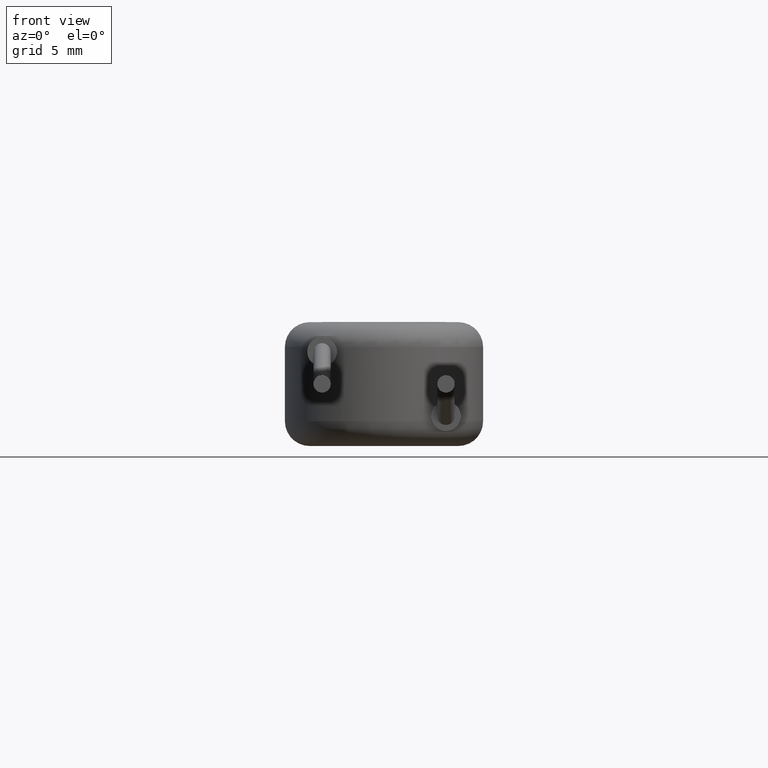
[diagram: clean part render]
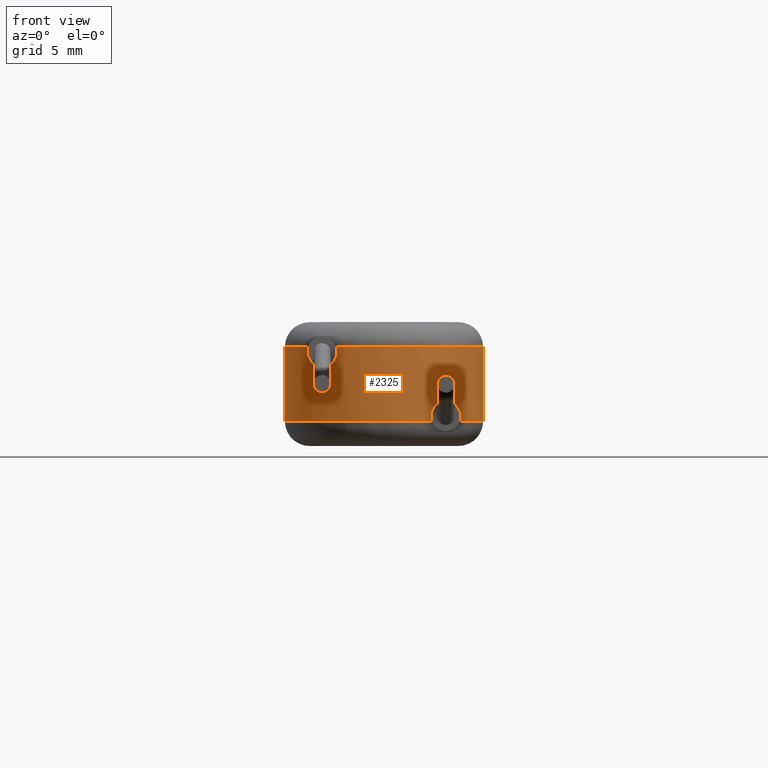
[diagram: same view with one face highlighted and labeled with its STEP entity id]
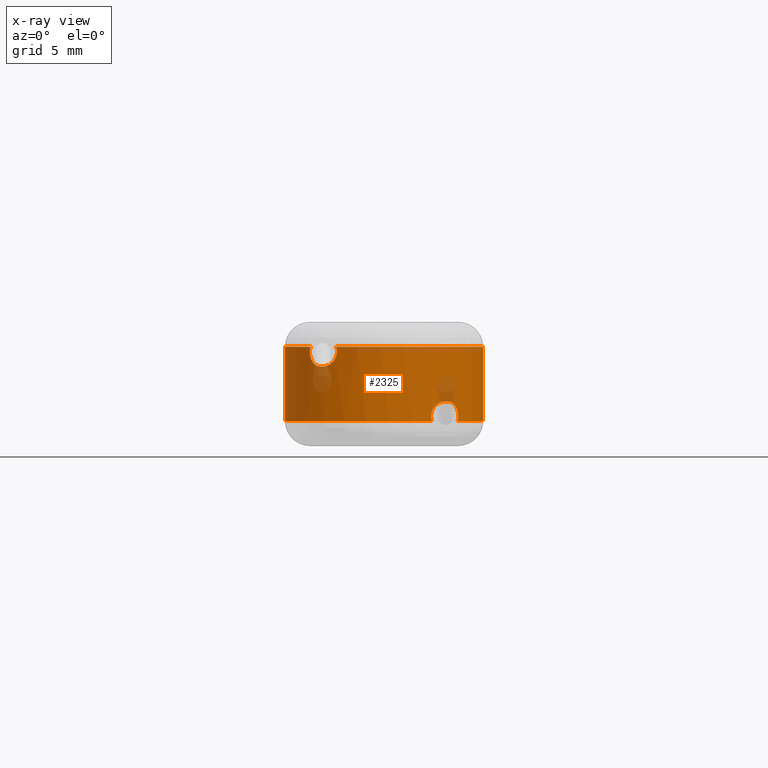
[diagram: x-ray of the same camera — body ghosted, the highlighted face saturated]
A machine part, front view. The second image highlights one B-rep face of the part: STEP entity #2325.
The next image is the same camera in x-ray: the body ghosted, the highlighted face saturated — about 6% of this face is hidden behind the body in this view.
In plain terms, the highlighted cylindrical surface (partial cylindrical patch) has radius 4 mm, axis along (-0, -0, -1).
Its self-contained STEP definition (entity closure, byte-faithful):
#7 = ORIENTED_EDGE ( 'NONE', *, *, #207, .F. ) ;
#19 = CARTESIAN_POINT ( 'NONE',  ( -1.899981518268653025, -3.520171696827346430, 3.902891450922202576 ) ) ;
#22 = ORIENTED_EDGE ( 'NONE', *, *, #2244, .T. ) ;
#29 = CARTESIAN_POINT ( 'NONE',  ( 2.174352789384510043, -3.358815753340507193, 1.711564833415646802 ) ) ;
#78 = CARTESIAN_POINT ( 'NONE',  ( 0.000000000000000000, 0.000000000000000000, 4.000000000000000000 ) ) ;
#98 = AXIS2_PLACEMENT_3D ( 'NONE', #78, #958, #3031 ) ;
#112 = CIRCLE ( 'NONE', #1730, 4.000000000000000000 ) ;
#207 = EDGE_CURVE ( 'NONE', #1421, #2740, #250, .T. ) ;
#224 = CIRCLE ( 'NONE', #98, 4.000000000000000000 ) ;
#246 = CARTESIAN_POINT ( 'NONE',  ( 1.934314575050757989, -3.501203667989940094, 1.000000000000001110 ) ) ;
#250 = LINE ( 'NONE', #3500, #2605 ) ;
#283 = CARTESIAN_POINT ( 'NONE',  ( -2.500000000000000444, -3.122498999199198710, 3.199999999999999734 ) ) ;
#290 = CARTESIAN_POINT ( 'NONE',  ( -4.000000000000000000, 0.000000000000000000, 4.000000000000000000 ) ) ;
#314 = CARTESIAN_POINT ( 'NONE',  ( -2.968394557020705538, -2.681162761536466377, 4.000000000000000000 ) ) ;
#317 = CARTESIAN_POINT ( 'NONE',  ( 2.499999999999999556, -3.122498999199199599, 1.800000000000002931 ) ) ;
#323 = CARTESIAN_POINT ( 'NONE',  ( -2.710400036649135647, -2.941722563623627273, 3.238099809060325462 ) ) ;
#324 = CARTESIAN_POINT ( 'NONE',  ( -1.974266254216698213, -3.479563494973956228, 3.495031602853920560 ) ) ;
#328 = CARTESIAN_POINT ( 'NONE',  ( 2.976242254088621753, -2.672474344109618372, 1.031676965641804555 ) ) ;
#342 = CARTESIAN_POINT ( 'NONE',  ( -2.500000000000000444, -3.122498999199198710, 3.199999999999999734 ) ) ;
#355 = CARTESIAN_POINT ( 'NONE',  ( -2.989052219468586014, -2.658116648611031252, 3.691611371385618678 ) ) ;
#436 = CARTESIAN_POINT ( 'NONE',  ( 0.000000000000000000, 0.000000000000000000, 1.000000000000000000 ) ) ;
#477 = DIRECTION ( 'NONE',  ( -1.000000000000000000, 0.000000000000000000, 0.000000000000000000 ) ) ;
#489 = VERTEX_POINT ( 'NONE', #290 ) ;
#544 = CIRCLE ( 'NONE', #728, 4.000000000000000000 ) ;
#548 = VERTEX_POINT ( 'NONE', #2449 ) ;
#557 = DIRECTION ( 'NONE',  ( -0.000000000000000000, -0.000000000000000000, -1.000000000000000000 ) ) ;
#570 = CARTESIAN_POINT ( 'NONE',  ( -4.000000000000000000, 0.000000000000000000, 5.000000000000000000 ) ) ;
#629 = DIRECTION ( 'NONE',  ( 1.000000000000000000, 0.000000000000000000, 0.000000000000000000 ) ) ;
#700 = B_SPLINE_CURVE_WITH_KNOTS ( 'NONE', 3,
 ( #3487, #2627, #844, #1079, #2923, #3435 ),
 .UNSPECIFIED., .F., .F.,
 ( 4, 2, 4 ),
 ( 0.000000000000000000, 0.0003662016099824492348, 0.0007324032199648984696 ),
 .UNSPECIFIED. ) ;
#728 = AXIS2_PLACEMENT_3D ( 'NONE', #2466, #919, #629 ) ;
#744 = CARTESIAN_POINT ( 'NONE',  ( 0.000000000000000000, 0.000000000000000000, 5.000000000000000000 ) ) ;
#793 = CARTESIAN_POINT ( 'NONE',  ( -4.000000000000000000, 0.000000000000000000, 1.000000000000000000 ) ) ;
#815 = DIRECTION ( 'NONE',  ( 0.000000000000000000, 0.000000000000000000, 1.000000000000000000 ) ) ;
#827 = EDGE_CURVE ( 'NONE', #548, #843, #3098, .T. ) ;
#843 = VERTEX_POINT ( 'NONE', #2383 ) ;
#844 = CARTESIAN_POINT ( 'NONE',  ( 2.965711530738586621, -2.685105168867783831, 1.444206059467700642 ) ) ;
#870 = ORIENTED_EDGE ( 'NONE', *, *, #827, .F. ) ;
#881 = CARTESIAN_POINT ( 'NONE',  ( 2.992352664474915880, -2.654397395155795536, 1.200000000000000178 ) ) ;
#887 = CARTESIAN_POINT ( 'NONE',  ( 1.891027346490448569, -3.524835596556984640, 1.204737538690068499 ) ) ;
#919 = DIRECTION ( 'NONE',  ( -0.000000000000000000, -0.000000000000000000, -1.000000000000000000 ) ) ;
#920 = ORIENTED_EDGE ( 'NONE', *, *, #1050, .T. ) ;
#958 = DIRECTION ( 'NONE',  ( -0.000000000000000000, -0.000000000000000000, -1.000000000000000000 ) ) ;
#1001 = B_SPLINE_CURVE_WITH_KNOTS ( 'NONE', 3,
 ( #283, #2679, #1522, #2921, #2639, #324, #2393, #3595, #19, #3274 ),
 .UNSPECIFIED., .F., .F.,
 ( 4, 2, 2, 2, 4 ),
 ( 0.0004565854305720528044, 0.0007673917839012702564, 0.001078198137230487654, 0.001389004490559705160, 0.001699810843888922667 ),
 .UNSPECIFIED. ) ;
#1011 = EDGE_CURVE ( 'NONE', #1122, #2411, #700, .T. ) ;
#1050 = EDGE_CURVE ( 'NONE', #489, #1057, #3216, .T. ) ;
#1057 = VERTEX_POINT ( 'NONE', #793 ) ;
#1079 = CARTESIAN_POINT ( 'NONE',  ( 2.866668500186615898, -2.790599641918223295, 1.643335013523060439 ) ) ;
#1113 = DIRECTION ( 'NONE',  ( 1.000000000000000000, 0.000000000000000000, 0.000000000000000000 ) ) ;
#1122 = VERTEX_POINT ( 'NONE', #1623 ) ;
#1158 = B_SPLINE_CURVE_WITH_KNOTS ( 'NONE', 3,
 ( #323, #2372, #1521, #1222 ),
 .UNSPECIFIED., .F., .F.,
 ( 4, 4 ),
 ( 0.0001763559612879708023, 0.0004565854305720527502 ),
 .UNSPECIFIED. ) ;
#1173 = EDGE_CURVE ( 'NONE', #548, #489, #224, .T. ) ;
#1190 = CARTESIAN_POINT ( 'NONE',  ( 2.968394557020707314, -2.681162761536464600, 1.000000000000000000 ) ) ;
#1195 = CARTESIAN_POINT ( 'NONE',  ( -2.994571877738025467, -2.651896784830394260, 3.847335296551248618 ) ) ;
#1222 = CARTESIAN_POINT ( 'NONE',  ( -2.500000000000000444, -3.122498999199198710, 3.199999999999999734 ) ) ;
#1251 = ORIENTED_EDGE ( 'NONE', *, *, #2650, .F. ) ;
#1268 = CARTESIAN_POINT ( 'NONE',  ( 2.710400036649136535, -2.941722563623627273, 1.761900190939724498 ) ) ;
#1320 = CARTESIAN_POINT ( 'NONE',  ( 2.499999999999999556, -3.122498999199199599, 1.800000000000002931 ) ) ;
#1331 = EDGE_CURVE ( 'NONE', #1057, #3582, #3750, .T. ) ;
#1385 = DIRECTION ( 'NONE',  ( -0.000000000000000000, -0.000000000000000000, -1.000000000000000000 ) ) ;
#1397 = CARTESIAN_POINT ( 'NONE',  ( 1.934314575050757989, -3.501203667989940094, 1.000000000000001110 ) ) ;
#1421 = VERTEX_POINT ( 'NONE', #2576 ) ;
#1428 = DIRECTION ( 'NONE',  ( 1.000000000000000000, 0.000000000000000000, 0.000000000000000000 ) ) ;
#1465 = EDGE_CURVE ( 'NONE', #843, #2043, #1158, .T. ) ;
#1521 = CARTESIAN_POINT ( 'NONE',  ( -2.572534290086079700, -3.064425089403967739, 3.199999999999997069 ) ) ;
#1522 = CARTESIAN_POINT ( 'NONE',  ( -2.334974292346147617, -3.249207345134375036, 3.216466624448464984 ) ) ;
#1525 = CARTESIAN_POINT ( 'NONE',  ( 2.992352664474916324, -2.654397395155795536, 1.165756170800593239 ) ) ;
#1553 = CARTESIAN_POINT ( 'NONE',  ( -2.710400036649135647, -2.941722563623627273, 3.238099809060325462 ) ) ;
#1623 = CARTESIAN_POINT ( 'NONE',  ( 2.992352664474915880, -2.654397395155795536, 1.200000000000000178 ) ) ;
#1664 = CARTESIAN_POINT ( 'NONE',  ( -1.934314575050761764, -3.501203667989937873, 3.999999999999999112 ) ) ;
#1718 = B_SPLINE_CURVE_WITH_KNOTS ( 'NONE', 3,
 ( #2365, #3584, #2690, #29, #2103, #3559, #3288, #887, #1723, #246 ),
 .UNSPECIFIED., .F., .F.,
 ( 4, 2, 2, 2, 4 ),
 ( 0.0004565854305720537802, 0.0007673917839012723164, 0.001078198137230490907, 0.001389004490559709280, 0.001699810843888927871 ),
 .UNSPECIFIED. ) ;
#1723 = CARTESIAN_POINT ( 'NONE',  ( 1.899981518268649472, -3.520171696827349095, 1.097108549077797868 ) ) ;
#1730 = AXIS2_PLACEMENT_3D ( 'NONE', #3780, #815, #1113 ) ;
#1752 = B_SPLINE_CURVE_WITH_KNOTS ( 'NONE', 3,
 ( #1190, #328, #3554, #2723, #1525, #881 ),
 .UNSPECIFIED., .F., .F.,
 ( 4, 2, 4 ),
 ( 0.003576672865287293130, 0.003677906363594834679, 0.003779139861902376663 ),
 .UNSPECIFIED. ) ;
#1833 = VERTEX_POINT ( 'NONE', #317 ) ;
#1856 = CARTESIAN_POINT ( 'NONE',  ( -2.986537905667372872, -2.661075723874480214, 3.926764982550416061 ) ) ;
#1906 = CARTESIAN_POINT ( 'NONE',  ( 2.968394557020707314, -2.681162761536464600, 1.000000000000000000 ) ) ;
#1937 = ORIENTED_EDGE ( 'NONE', *, *, #1984, .F. ) ;
#1984 = EDGE_CURVE ( 'NONE', #2043, #3246, #1001, .T. ) ;
#1997 = ORIENTED_EDGE ( 'NONE', *, *, #2961, .F. ) ;
#2043 = VERTEX_POINT ( 'NONE', #342 ) ;
#2057 = CARTESIAN_POINT ( 'NONE',  ( 2.644150118921272608, -3.002762915170724689, 1.786707061168579358 ) ) ;
#2102 = CARTESIAN_POINT ( 'NONE',  ( -2.819518401857967760, -2.841184727486965489, 3.292504438250653198 ) ) ;
#2103 = CARTESIAN_POINT ( 'NONE',  ( 2.097086790902846332, -3.406951180970313686, 1.655041361469732131 ) ) ;
#2181 = EDGE_CURVE ( 'NONE', #3044, #2740, #112, .T. ) ;
#2208 = AXIS2_PLACEMENT_3D ( 'NONE', #744, #2532, #477 ) ;
#2244 = EDGE_CURVE ( 'NONE', #1421, #3246, #544, .T. ) ;
#2323 = ORIENTED_EDGE ( 'NONE', *, *, #1011, .F. ) ;
#2325 = ADVANCED_FACE ( 'NONE', ( #3465 ), #3116, .T. ) ;
#2342 = ORIENTED_EDGE ( 'NONE', *, *, #2375, .F. ) ;
#2365 = CARTESIAN_POINT ( 'NONE',  ( 2.499999999999999556, -3.122498999199199599, 1.800000000000002931 ) ) ;
#2372 = CARTESIAN_POINT ( 'NONE',  ( -2.644150118921279713, -3.002762915170718916, 3.213292938831425083 ) ) ;
#2375 = EDGE_CURVE ( 'NONE', #2411, #1833, #2632, .T. ) ;
#2383 = CARTESIAN_POINT ( 'NONE',  ( -2.710400036649135647, -2.941722563623627273, 3.238099809060325462 ) ) ;
#2393 = CARTESIAN_POINT ( 'NONE',  ( -1.928323298932473007, -3.504571252339454990, 3.590105058536777971 ) ) ;
#2411 = VERTEX_POINT ( 'NONE', #1268 ) ;
#2432 = DIRECTION ( 'NONE',  ( 0.000000000000000000, 0.000000000000000000, 1.000000000000000000 ) ) ;
#2449 = CARTESIAN_POINT ( 'NONE',  ( -2.968394557020705538, -2.681162761536466377, 4.000000000000000000 ) ) ;
#2466 = CARTESIAN_POINT ( 'NONE',  ( 0.000000000000000000, 0.000000000000000000, 4.000000000000000000 ) ) ;
#2532 = DIRECTION ( 'NONE',  ( -0.000000000000000000, -0.000000000000000000, -1.000000000000000000 ) ) ;
#2576 = CARTESIAN_POINT ( 'NONE',  ( 4.000000000000000000, 4.898587196589412829E-16, 4.000000000000000000 ) ) ;
#2605 = VECTOR ( 'NONE', #557, 1000.000000000000000 ) ;
#2627 = CARTESIAN_POINT ( 'NONE',  ( 2.992352664474915436, -2.654397395155795536, 1.323873476610385680 ) ) ;
#2632 = B_SPLINE_CURVE_WITH_KNOTS ( 'NONE', 3,
 ( #3541, #2057, #3239, #1320 ),
 .UNSPECIFIED., .F., .F.,
 ( 4, 4 ),
 ( 0.0001763559612879839211, 0.0004565854305720537260 ),
 .UNSPECIFIED. ) ;
#2639 = CARTESIAN_POINT ( 'NONE',  ( -2.097086790902848552, -3.406951180970311910, 3.344958638530269646 ) ) ;
#2650 = EDGE_CURVE ( 'NONE', #3044, #1122, #1752, .T. ) ;
#2679 = CARTESIAN_POINT ( 'NONE',  ( -2.419551222608484764, -3.186909570197099306, 3.199999999999997069 ) ) ;
#2690 = CARTESIAN_POINT ( 'NONE',  ( 2.334974292346147173, -3.249207345134375924, 1.783533375551538347 ) ) ;
#2723 = CARTESIAN_POINT ( 'NONE',  ( 2.990329789179464459, -2.656682929558092709, 1.131874959591829599 ) ) ;
#2740 = VERTEX_POINT ( 'NONE', #3034 ) ;
#2744 = ORIENTED_EDGE ( 'NONE', *, *, #2181, .T. ) ;
#2815 = AXIS2_PLACEMENT_3D ( 'NONE', #436, #2432, #1428 ) ;
#2910 = ORIENTED_EDGE ( 'NONE', *, *, #1173, .T. ) ;
#2921 = CARTESIAN_POINT ( 'NONE',  ( -2.174352789384512707, -3.358815753340506305, 3.288435166584354974 ) ) ;
#2923 = CARTESIAN_POINT ( 'NONE',  ( 2.794823563282847090, -2.863937685976906788, 1.719808003683654052 ) ) ;
#2961 = EDGE_CURVE ( 'NONE', #1833, #3582, #1718, .T. ) ;
#2975 = EDGE_LOOP ( 'NONE', ( #7, #22, #1937, #3284, #870, #2910, #920, #3366, #1997, #2342, #2323, #1251, #2744 ) ) ;
#3031 = DIRECTION ( 'NONE',  ( 1.000000000000000000, 1.776356839400250465E-15, 0.000000000000000000 ) ) ;
#3034 = CARTESIAN_POINT ( 'NONE',  ( 4.000000000000000000, 4.898587196589412829E-16, 1.000000000000000000 ) ) ;
#3044 = VERTEX_POINT ( 'NONE', #1906 ) ;
#3098 = B_SPLINE_CURVE_WITH_KNOTS ( 'NONE', 3,
 ( #314, #1856, #1195, #355, #3301, #3320, #2102, #1553 ),
 .UNSPECIFIED., .F., .F.,
 ( 4, 2, 2, 4 ),
 ( 0.001686452978055316167, 0.001920353546006835742, 0.002154254113958355317, 0.002622055249861394034 ),
 .UNSPECIFIED. ) ;
#3116 = CYLINDRICAL_SURFACE ( 'NONE', #2208, 4.000000000000000000 ) ;
#3216 = LINE ( 'NONE', #570, #3437 ) ;
#3239 = CARTESIAN_POINT ( 'NONE',  ( 2.572534290086075703, -3.064425089403970848, 1.800000000000005596 ) ) ;
#3246 = VERTEX_POINT ( 'NONE', #1664 ) ;
#3274 = CARTESIAN_POINT ( 'NONE',  ( -1.934314575050761764, -3.501203667989937873, 3.999999999999999112 ) ) ;
#3284 = ORIENTED_EDGE ( 'NONE', *, *, #1465, .F. ) ;
#3288 = CARTESIAN_POINT ( 'NONE',  ( 1.928323298932469898, -3.504571252339455878, 1.409894941463223583 ) ) ;
#3301 = CARTESIAN_POINT ( 'NONE',  ( -2.975451667321294735, -2.673552261579478007, 3.613886320884189374 ) ) ;
#3320 = CARTESIAN_POINT ( 'NONE',  ( -2.905494243194135962, -2.750069177786808705, 3.403518735676942963 ) ) ;
#3366 = ORIENTED_EDGE ( 'NONE', *, *, #1331, .T. ) ;
#3435 = CARTESIAN_POINT ( 'NONE',  ( 2.710400036649136535, -2.941722563623627273, 1.761900190939724498 ) ) ;
#3437 = VECTOR ( 'NONE', #1385, 1000.000000000000000 ) ;
#3465 = FACE_OUTER_BOUND ( 'NONE', #2975, .T. ) ;
#3487 = CARTESIAN_POINT ( 'NONE',  ( 2.992352664474915880, -2.654397395155795536, 1.200000000000000178 ) ) ;
#3500 = CARTESIAN_POINT ( 'NONE',  ( 4.000000000000000000, 4.898587196589412829E-16, 5.000000000000000000 ) ) ;
#3541 = CARTESIAN_POINT ( 'NONE',  ( 2.710400036649136535, -2.941722563623627273, 1.761900190939724498 ) ) ;
#3554 = CARTESIAN_POINT ( 'NONE',  ( 2.982297992768815131, -2.665695991403853604, 1.064831975325485125 ) ) ;
#3559 = CARTESIAN_POINT ( 'NONE',  ( 1.974266254216694660, -3.479563494973958004, 1.504968397146081660 ) ) ;
#3582 = VERTEX_POINT ( 'NONE', #1397 ) ;
#3584 = CARTESIAN_POINT ( 'NONE',  ( 2.419551222608483432, -3.186909570197099306, 1.800000000000005596 ) ) ;
#3595 = CARTESIAN_POINT ( 'NONE',  ( -1.891027346490451899, -3.524835596556984640, 3.795262461309933055 ) ) ;
#3750 = CIRCLE ( 'NONE', #2815, 4.000000000000000000 ) ;
#3780 = CARTESIAN_POINT ( 'NONE',  ( 0.000000000000000000, 0.000000000000000000, 1.000000000000000000 ) ) ;